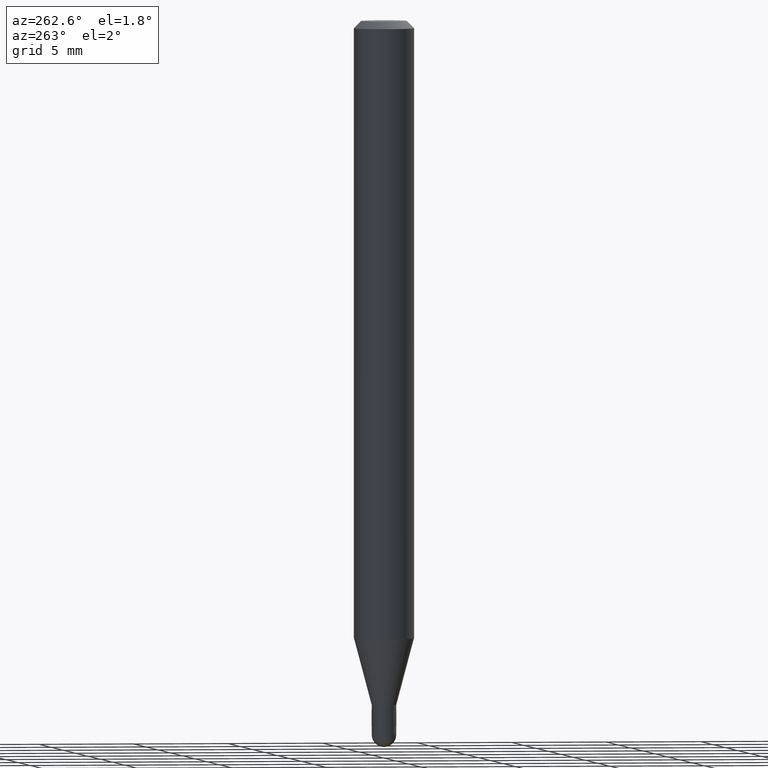
[diagram: clean part render]
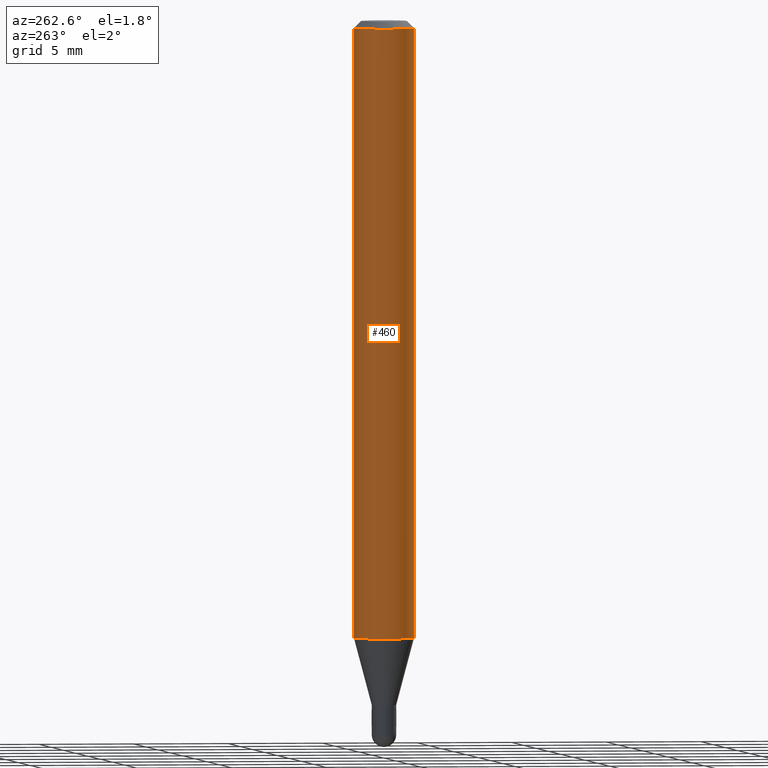
[diagram: same view with one face highlighted and labeled with its STEP entity id]
A machine part, auxiliary view. The second image highlights one B-rep face of the part: STEP entity #460.
In plain terms, the highlighted cylindrical surface (edge-blend (fillet) strip) has radius 1.5875 mm, axis along (-0, 0, 1).
Its self-contained STEP definition (entity closure, byte-faithful):
#2 = EDGE_LOOP ( 'NONE', ( #335, #466, #153, #234 ) ) ;
#18 = AXIS2_PLACEMENT_3D ( 'NONE', #468, #458, #301 ) ;
#28 = AXIS2_PLACEMENT_3D ( 'NONE', #385, #319, #425 ) ;
#40 = VERTEX_POINT ( 'NONE', #435 ) ;
#43 = EDGE_CURVE ( 'NONE', #40, #470, #343, .T. ) ;
#91 = DIRECTION ( 'NONE',  ( -2.445462518212453604E-29, 3.491490343577917092E-15, 1.000000000000000000 ) ) ;
#92 = CARTESIAN_POINT ( 'NONE',  ( 4.440892098500939734E-16, 0.06249999999999995143, -0.01500000000000054588 ) ) ;
#126 = VECTOR ( 'NONE', #447, 39.37007874015748143 ) ;
#153 = ORIENTED_EDGE ( 'NONE', *, *, #413, .T. ) ;
#234 = ORIENTED_EDGE ( 'NONE', *, *, #311, .F. ) ;
#238 = CIRCLE ( 'NONE', #18, 0.06250000000000000000 ) ;
#246 = AXIS2_PLACEMENT_3D ( 'NONE', #373, #467, #474 ) ;
#263 = CYLINDRICAL_SURFACE ( 'NONE', #246, 0.06250000000000000000 ) ;
#288 = LINE ( 'NONE', #397, #126 ) ;
#301 = DIRECTION ( 'NONE',  ( -6.982962677686265922E-15, -1.000000000000000000, 3.483106191921935554E-15 ) ) ;
#309 = FACE_OUTER_BOUND ( 'NONE', #2, .T. ) ;
#311 = EDGE_CURVE ( 'NONE', #498, #313, #238, .T. ) ;
#313 = VERTEX_POINT ( 'NONE', #381 ) ;
#319 = DIRECTION ( 'NONE',  ( -2.445462518212453604E-29, 3.491490343577917092E-15, 1.000000000000000000 ) ) ;
#320 = VECTOR ( 'NONE', #91, 39.37007874015748143 ) ;
#335 = ORIENTED_EDGE ( 'NONE', *, *, #391, .F. ) ;
#343 = CIRCLE ( 'NONE', #28, 0.06250000000000000000 ) ;
#359 = LINE ( 'NONE', #393, #320 ) ;
#373 = CARTESIAN_POINT ( 'NONE',  ( 0.000000000000000000, 0.000000000000000000, 0.000000000000000000 ) ) ;
#377 = CARTESIAN_POINT ( 'NONE',  ( -4.364351673553606080E-16, -0.06250000000000446865, -1.274914120119952088 ) ) ;
#381 = CARTESIAN_POINT ( 'NONE',  ( -4.364351673553912750E-16, -0.06250000000000005551, -0.01500000000000011047 ) ) ;
#385 = CARTESIAN_POINT ( 'NONE',  ( 3.117754694693152859E-29, -4.451350339289950225E-15, -1.274914120119952310 ) ) ;
#391 = EDGE_CURVE ( 'NONE', #40, #498, #359, .T. ) ;
#393 = CARTESIAN_POINT ( 'NONE',  ( 4.440892098500625669E-16, 0.06250000000000000000, -2.182181464736198183E-16 ) ) ;
#397 = CARTESIAN_POINT ( 'NONE',  ( -4.364351673553916201E-16, -0.06250000000000000000, 2.182181464736198183E-16 ) ) ;
#413 = EDGE_CURVE ( 'NONE', #470, #313, #288, .T. ) ;
#425 = DIRECTION ( 'NONE',  ( -6.982962677686265922E-15, -1.000000000000000000, 4.370956789862821150E-15 ) ) ;
#435 = CARTESIAN_POINT ( 'NONE',  ( 4.440892098500934804E-16, 0.06249999999999551747, -1.274914120119952532 ) ) ;
#447 = DIRECTION ( 'NONE',  ( -2.445462518212453604E-29, 3.491490343577917092E-15, 1.000000000000000000 ) ) ;
#458 = DIRECTION ( 'NONE',  ( -2.445462518212453604E-29, 3.491490343577917092E-15, 1.000000000000000000 ) ) ;
#460 = ADVANCED_FACE ( 'NONE', ( #309 ), #263, .T. ) ;
#466 = ORIENTED_EDGE ( 'NONE', *, *, #43, .T. ) ;
#467 = DIRECTION ( 'NONE',  ( -2.445462518212453604E-29, 3.491490343577917092E-15, 1.000000000000000000 ) ) ;
#468 = CARTESIAN_POINT ( 'NONE',  ( 3.668193777318761015E-31, -5.237235515366990319E-17, -0.01500000000000032904 ) ) ;
#470 = VERTEX_POINT ( 'NONE', #377 ) ;
#474 = DIRECTION ( 'NONE',  ( -6.982962677686265922E-15, -1.000000000000000000, 3.491490343577917092E-15 ) ) ;
#498 = VERTEX_POINT ( 'NONE', #92 ) ;